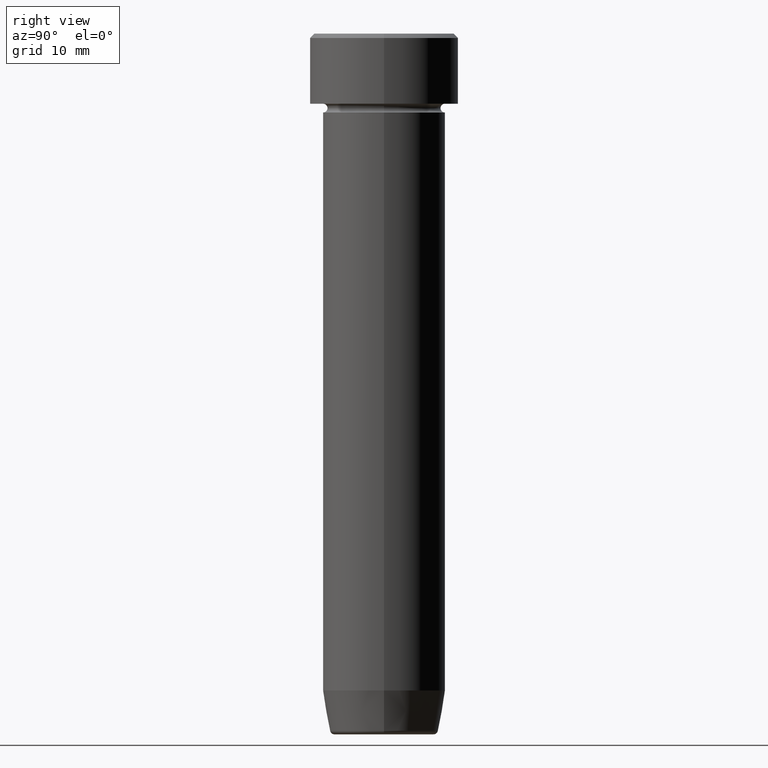
[diagram: clean part render]
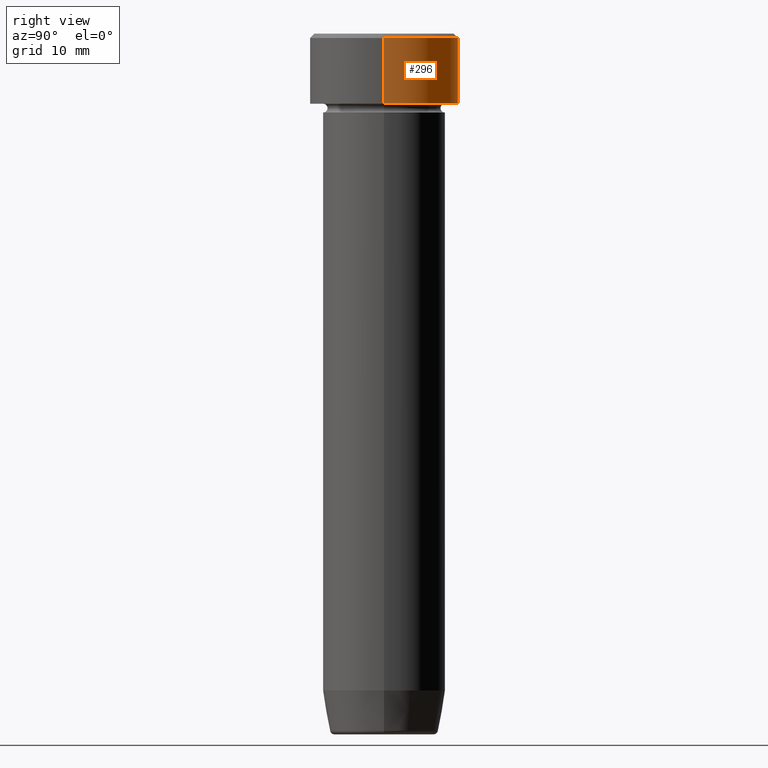
[diagram: same view with one face highlighted and labeled with its STEP entity id]
A machine part, right view. The second image highlights one B-rep face of the part: STEP entity #296.
In plain terms, the highlighted cylindrical surface (partial cylindrical patch) has radius 8.5 mm, axis along (-0, -0, 1).
Its self-contained STEP definition (entity closure, byte-faithful):
#15 = CARTESIAN_POINT ( 'NONE',  ( 0.000000000000000000, 0.000000000000000000, 0.000000000000000000 ) ) ;
#17 = EDGE_CURVE ( 'NONE', #148, #322, #517, .T. ) ;
#18 = CARTESIAN_POINT ( 'NONE',  ( -8.500000000000000000, 1.040949779275250140E-15, -8.000000000000000000 ) ) ;
#21 = CARTESIAN_POINT ( 'NONE',  ( 0.000000000000000000, 0.000000000000000000, -8.000000000000000000 ) ) ;
#43 = VECTOR ( 'NONE', #144, 1000.000000000000000 ) ;
#87 = VERTEX_POINT ( 'NONE', #169 ) ;
#89 = CARTESIAN_POINT ( 'NONE',  ( 0.000000000000000000, 0.000000000000000000, -0.4999999999999987232 ) ) ;
#100 = DIRECTION ( 'NONE',  ( 1.000000000000000000, 0.000000000000000000, 0.000000000000000000 ) ) ;
#106 = ORIENTED_EDGE ( 'NONE', *, *, #582, .T. ) ;
#124 = CYLINDRICAL_SURFACE ( 'NONE', #408, 8.500000000000000000 ) ;
#142 = DIRECTION ( 'NONE',  ( -0.000000000000000000, -0.000000000000000000, 1.000000000000000000 ) ) ;
#144 = DIRECTION ( 'NONE',  ( -0.000000000000000000, -0.000000000000000000, 1.000000000000000000 ) ) ;
#148 = VERTEX_POINT ( 'NONE', #354 ) ;
#169 = CARTESIAN_POINT ( 'NONE',  ( -8.500000000000000000, 1.040949779275250140E-15, -0.4999999999999987232 ) ) ;
#173 = EDGE_CURVE ( 'NONE', #299, #87, #428, .T. ) ;
#194 = AXIS2_PLACEMENT_3D ( 'NONE', #89, #285, #471 ) ;
#226 = CARTESIAN_POINT ( 'NONE',  ( 8.500000000000000000, 0.000000000000000000, -0.4999999999999987232 ) ) ;
#229 = FACE_OUTER_BOUND ( 'NONE', #254, .T. ) ;
#254 = EDGE_LOOP ( 'NONE', ( #106, #269, #330, #520 ) ) ;
#269 = ORIENTED_EDGE ( 'NONE', *, *, #173, .T. ) ;
#285 = DIRECTION ( 'NONE',  ( 0.000000000000000000, 0.000000000000000000, -1.000000000000000000 ) ) ;
#290 = CIRCLE ( 'NONE', #365, 8.500000000000000000 ) ;
#296 = ADVANCED_FACE ( 'NONE', ( #229 ), #124, .T. ) ;
#299 = VERTEX_POINT ( 'NONE', #18 ) ;
#322 = VERTEX_POINT ( 'NONE', #226 ) ;
#330 = ORIENTED_EDGE ( 'NONE', *, *, #369, .T. ) ;
#333 = CARTESIAN_POINT ( 'NONE',  ( 8.500000000000000000, 0.000000000000000000, 0.000000000000000000 ) ) ;
#354 = CARTESIAN_POINT ( 'NONE',  ( 8.500000000000000000, 0.000000000000000000, -8.000000000000000000 ) ) ;
#365 = AXIS2_PLACEMENT_3D ( 'NONE', #21, #529, #100 ) ;
#369 = EDGE_CURVE ( 'NONE', #87, #322, #572, .T. ) ;
#370 = DIRECTION ( 'NONE',  ( -0.000000000000000000, -0.000000000000000000, 1.000000000000000000 ) ) ;
#381 = CARTESIAN_POINT ( 'NONE',  ( -8.500000000000000000, 1.040949779275250140E-15, 0.000000000000000000 ) ) ;
#408 = AXIS2_PLACEMENT_3D ( 'NONE', #15, #370, #521 ) ;
#428 = LINE ( 'NONE', #381, #468 ) ;
#468 = VECTOR ( 'NONE', #142, 1000.000000000000000 ) ;
#471 = DIRECTION ( 'NONE',  ( 1.000000000000000000, 0.000000000000000000, 0.000000000000000000 ) ) ;
#517 = LINE ( 'NONE', #333, #43 ) ;
#520 = ORIENTED_EDGE ( 'NONE', *, *, #17, .F. ) ;
#521 = DIRECTION ( 'NONE',  ( 1.000000000000000000, 0.000000000000000000, 0.000000000000000000 ) ) ;
#529 = DIRECTION ( 'NONE',  ( -0.000000000000000000, -0.000000000000000000, 1.000000000000000000 ) ) ;
#572 = CIRCLE ( 'NONE', #194, 8.500000000000000000 ) ;
#582 = EDGE_CURVE ( 'NONE', #148, #299, #290, .T. ) ;